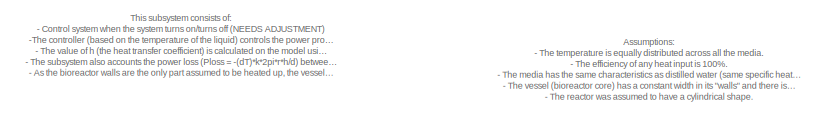
[diagram: root canvas - part 1/3, top left region]
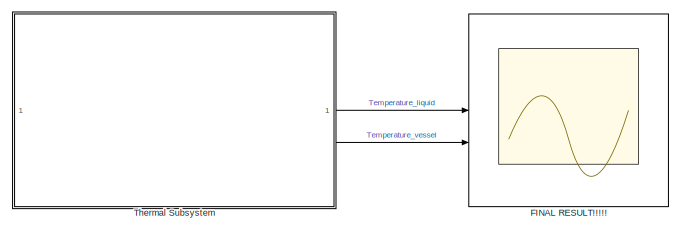
[diagram: root canvas - part 2/3, middle left region]
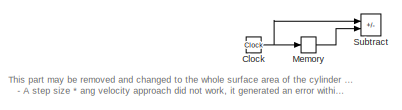
[diagram: root canvas - part 3/3, bottom right region]
MODEL slx_b20907751bbe
KIND model
CONFIG AbsTol = auto
CONFIG EnableMultiTasking = off
CONFIG FixedStep = auto
CONFIG MaxStep = auto
CONFIG MinStep = auto
CONFIG RelTol = 1e-3
CONFIG SampleTimeConstraint = Unconstrained
CONFIG SolverName = VariableStepAuto
CONFIG StartTime = 0.0
CONFIG StopTime = 1000
BLOCK [Clock] Clock
BLOCK [Scope] FINAL RESULT!!!!!
  Floating = off
  NumInputPorts = 2
  ScopeSpecificationString = Simulink.scopes.TimeScopeBlockCfg('CurrentConfiguration', extmgr.ConfigurationSet(extmgr.Configuration('Core','General UI',true),extmgr.Configuration('Core','Source UI',true),extmgr.Configuration('Sources','WiredSimulink',true,'DataLoggingVariableName','ScopeData2'),extmgr.Configuration('Visuals','Time Domain',true,'SerializedDisplays',{struct('MinYLimReal','24.3628','MaxYLimReal','30.73482','YLab...<+1427ch>
BLOCK [Memory] Memory
BLOCK [Sum] Subtract
  IconShape = rectangular
  Inputs = +-
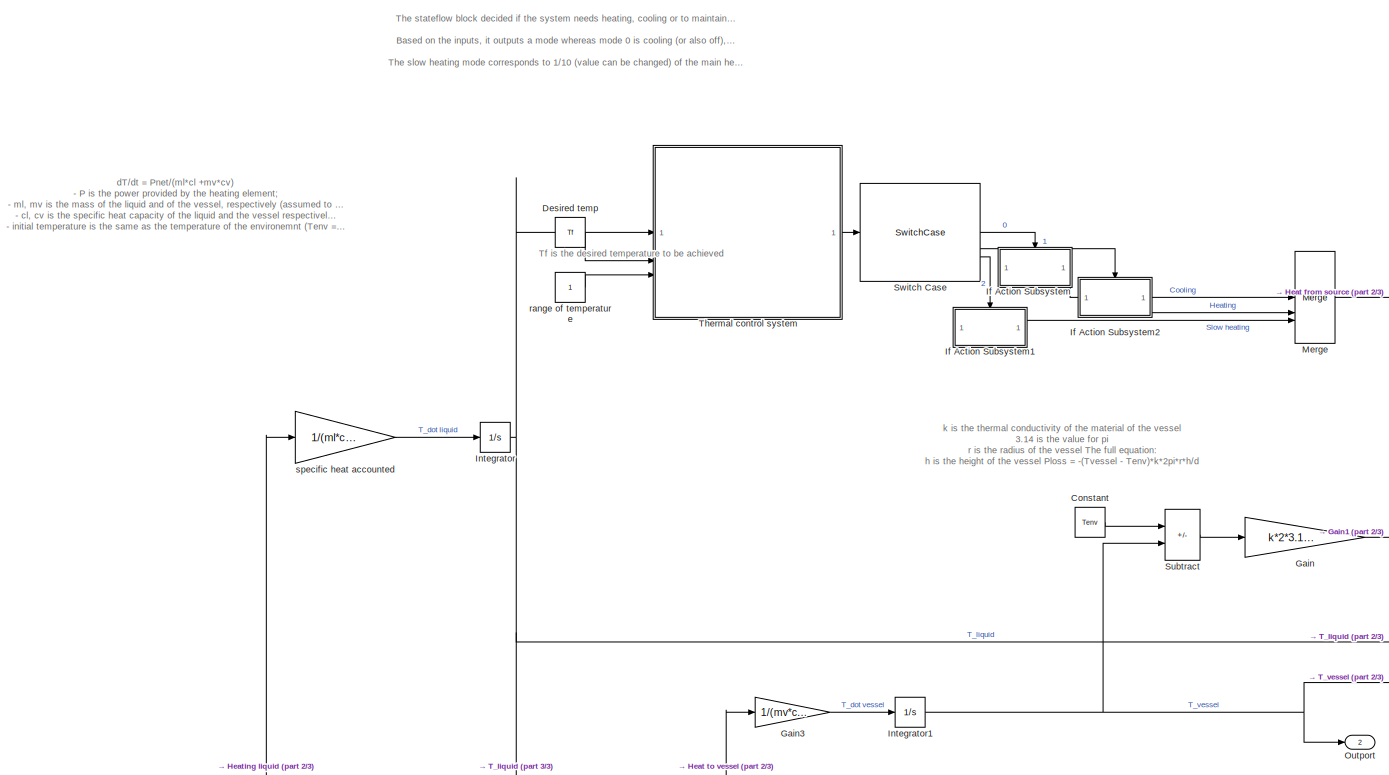
[diagram: Thermal Subsystem - part 1/3, top left region]
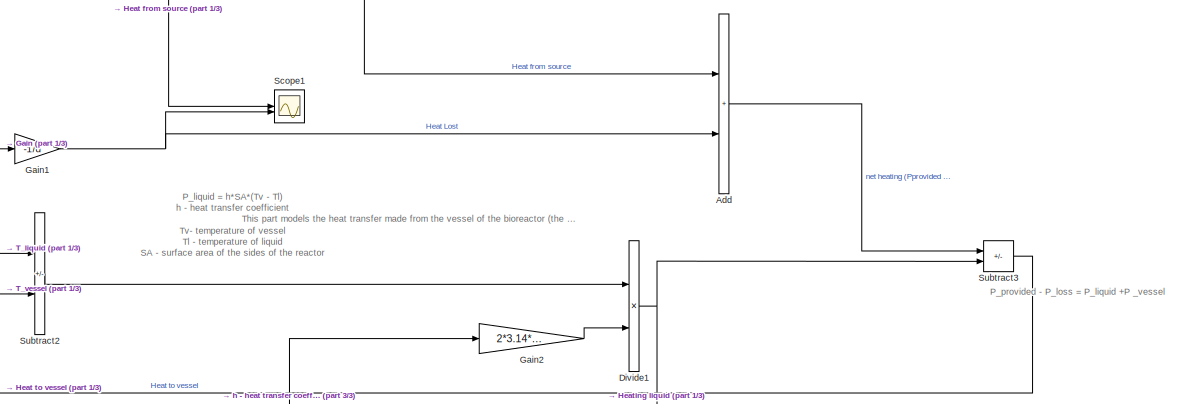
[diagram: Thermal Subsystem - part 2/3, middle right region]
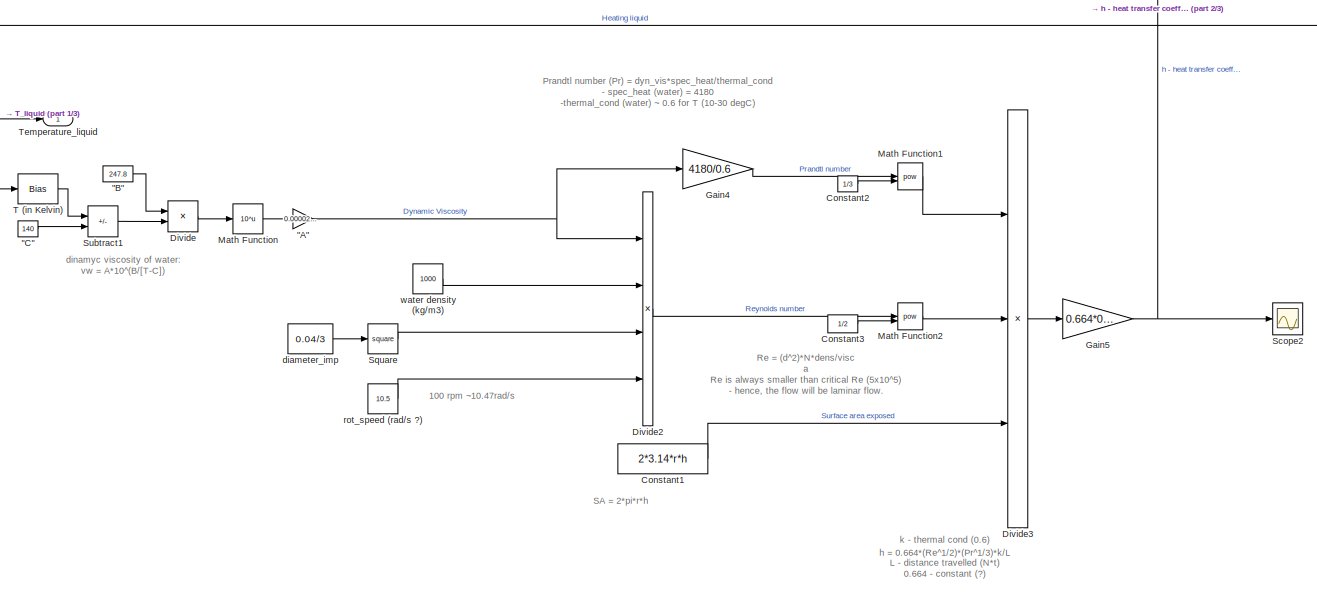
[diagram: Thermal Subsystem - part 3/3, bottom center region]
BLOCK [SubSystem] Thermal Subsystem
BLOCK [Gain] Thermal Subsystem/"A"
  Gain = 0.00002414
BLOCK [Constant] Thermal Subsystem/"B"
  Value = 247.8
BLOCK [Constant] Thermal Subsystem/"C"
  Value = 140
BLOCK [Sum] Thermal Subsystem/Add
  IconShape = rectangular
BLOCK [Constant] Thermal Subsystem/Constant
  Value = Tenv
BLOCK [Constant] Thermal Subsystem/Constant1
  Value = 2*3.14*r*h
BLOCK [Constant] Thermal Subsystem/Constant2
  Value = 1/3
BLOCK [Constant] Thermal Subsystem/Constant3
  Value = 1/2
BLOCK [Constant] Thermal Subsystem/Desired temp
  Value = Tf
BLOCK [Product] Thermal Subsystem/Divide
  Inputs = */
BLOCK [Product] Thermal Subsystem/Divide1
  Inputs = **
BLOCK [Product] Thermal Subsystem/Divide2
  Inputs = /***
BLOCK [Product] Thermal Subsystem/Divide3
  Inputs = **/
BLOCK [Gain] Thermal Subsystem/Gain
  Gain = k*2*3.14*r*h
BLOCK [Gain] Thermal Subsystem/Gain1
  Gain = -1/d
BLOCK [Gain] Thermal Subsystem/Gain2
  Gain = 2*3.14*r*h
BLOCK [Gain] Thermal Subsystem/Gain3
  Gain = 1/(mv*cv)
BLOCK [Gain] Thermal Subsystem/Gain4
  Gain = 4180/0.6
BLOCK [Gain] Thermal Subsystem/Gain5
  Gain = 0.664*0.6
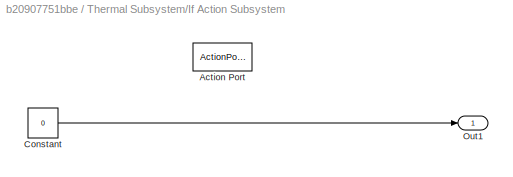
BLOCK [SubSystem] Thermal Subsystem/If Action Subsystem
  TreatAsAtomicUnit = on
BLOCK [ActionPort] Thermal Subsystem/If Action Subsystem/Action Port
  ActionPortLabel = case [ 0 ]:
BLOCK [Constant] Thermal Subsystem/If Action Subsystem/Constant
  Value = 0
BLOCK [Outport] Thermal Subsystem/If Action Subsystem/Out1
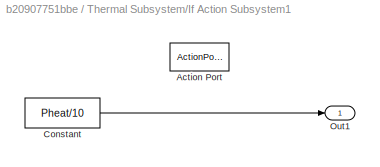
BLOCK [SubSystem] Thermal Subsystem/If Action Subsystem1
  TreatAsAtomicUnit = on
BLOCK [ActionPort] Thermal Subsystem/If Action Subsystem1/Action Port
  ActionPortLabel = case [ 2 ]:
BLOCK [Constant] Thermal Subsystem/If Action Subsystem1/Constant
  Value = Pheat/10
BLOCK [Outport] Thermal Subsystem/If Action Subsystem1/Out1
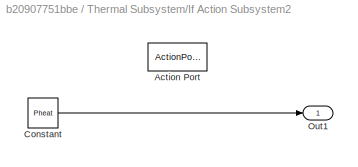
BLOCK [SubSystem] Thermal Subsystem/If Action Subsystem2
  TreatAsAtomicUnit = on
BLOCK [ActionPort] Thermal Subsystem/If Action Subsystem2/Action Port
  ActionPortLabel = case [ 1 ]:
BLOCK [Constant] Thermal Subsystem/If Action Subsystem2/Constant
  Value = Pheat
BLOCK [Outport] Thermal Subsystem/If Action Subsystem2/Out1
BLOCK [Integrator] Thermal Subsystem/Integrator
  InitialCondition = Tenv
BLOCK [Integrator] Thermal Subsystem/Integrator1
  InitialCondition = Tenv
BLOCK [Math] Thermal Subsystem/Math Function
  Operator = 10^u
BLOCK [Math] Thermal Subsystem/Math Function1
  Operator = pow
BLOCK [Math] Thermal Subsystem/Math Function2
  Operator = pow
BLOCK [Merge] Thermal Subsystem/Merge
  Inputs = 3
BLOCK [Outport] Thermal Subsystem/Outport
  Port = 2
BLOCK [Scope] Thermal Subsystem/Scope1
  Floating = off
  NumInputPorts = 2
  ScopeSpecificationString = Simulink.scopes.TimeScopeBlockCfg('CurrentConfiguration', extmgr.ConfigurationSet(extmgr.Configuration('Core','General UI',true),extmgr.Configuration('Core','Source UI',true),extmgr.Configuration('Sources','WiredSimulink',true,'DataLoggingVariableName','ScopeData2'),extmgr.Configuration('Visuals','Time Domain',true,'SerializedDisplays',{struct('MinYLimReal','-1.07609','MaxYLimReal','0.11957','YLab...<+1368ch>
BLOCK [Scope] Thermal Subsystem/Scope2
  Floating = off
  NumInputPorts = 1
  ScopeSpecificationString = Simulink.scopes.TimeScopeBlockCfg('CurrentConfiguration', extmgr.ConfigurationSet(extmgr.Configuration('Core','General UI',true),extmgr.Configuration('Core','Source UI',true),extmgr.Configuration('Sources','WiredSimulink',true,'DataLoggingVariableName','ScopeData1'),extmgr.Configuration('Visuals','Time Domain',true,'SerializedDisplays',{struct('MinYLimReal','53213.85828','MaxYLimReal','54475.01579...<+1390ch>
BLOCK [Math] Thermal Subsystem/Square
  Operator = square
BLOCK [Sum] Thermal Subsystem/Subtract
  IconShape = rectangular
  Inputs = -+
BLOCK [Sum] Thermal Subsystem/Subtract1
  IconShape = rectangular
  Inputs = +-
BLOCK [Sum] Thermal Subsystem/Subtract2
  IconShape = rectangular
  Inputs = -+
BLOCK [Sum] Thermal Subsystem/Subtract3
  IconShape = rectangular
  Inputs = +-
BLOCK [SwitchCase] Thermal Subsystem/Switch Case
  CaseConditions = {0,1,2}
  ShowDefaultCase = off
BLOCK [Bias] Thermal Subsystem/T (in Kelvin)
  Bias = 273
  SaturateOnIntegerOverflow = off
BLOCK [Outport] Thermal Subsystem/Temperature_liquid
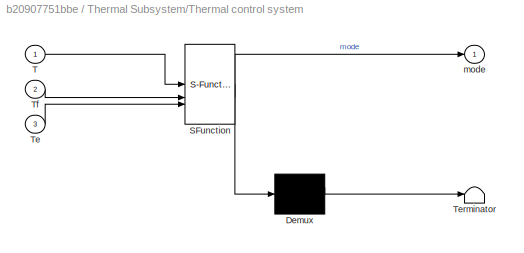
BLOCK [SubSystem] Thermal Subsystem/Thermal control system
  ErrorFcn = Stateflow.Translate.translate
  PermitHierarchicalResolution = ExplicitOnly
  SFBlockType = Chart
  TreatAsAtomicUnit = on
BLOCK [Demux] Thermal Subsystem/Thermal control system/ Demux 
  Outputs = 1
BLOCK [S-Function] Thermal Subsystem/Thermal control system/ SFunction 
  EnableBusSupport = on
  FunctionName = sf_sfun
  PortCounts = [3 2]
  SFcnIsStateOwnerBlock = off
  SFunctionDeploymentMode = off
  Tag = Stateflow S-Function 1
BLOCK [Terminator] Thermal Subsystem/Thermal control system/ Terminator 
BLOCK [Inport] Thermal Subsystem/Thermal control system/T
BLOCK [Inport] Thermal Subsystem/Thermal control system/Te
  Port = 3
BLOCK [Inport] Thermal Subsystem/Thermal control system/Tf
  Port = 2
BLOCK [Outport] Thermal Subsystem/Thermal control system/mode
BLOCK [Constant] Thermal Subsystem/diameter_imp
  Value = 0.04/3
BLOCK [Constant] Thermal Subsystem/range of temperature
BLOCK [Constant] Thermal Subsystem/rot_speed (rad//s ?)
  Value = 10.5
BLOCK [Gain] Thermal Subsystem/specific heat accounted
  Gain = 1/(ml*cl)
BLOCK [Constant] Thermal Subsystem/water density (kg//m3) 
  Value = 1000
ANNOTATION (root): This part may be removed and changed to the whole surface area of the cylinder rather than dependent on the step-size. --> could introduce uncertainties based on step-size. - A step size * ang velocity approach did not work, it generated an error within the first integrator. Therefore, the whole surface area will be considered to be the area where the heat transfer happens.
ANNOTATION (root): This subsystem consists of: - Control system when the system turns on/turns off (NEEDS ADJUSTMENT) -The controller (based on the temperature of the liquid) controls the power provided to the vessel (P_provided). The vessel is assumed to be the only part heated up. - The value of h (the heat transfer coefficient) is calculated on the model using a series of inputs that will be controlled later on d...<+858ch>
ANNOTATION (root): Assumptions: - The temperature is equally distributed across all the media. - The efficiency of any heat input is 100%. - The media has the same characteristics as distilled water (same specific heat capacity and density for example). - The vessel (bioreactor core) has a constant width in its "walls" and there is no heat transfer in the top and bottom of the bioreactor. - The reactor was assumed t...<+528ch>
ANNOTATION Thermal Subsystem: 100 rpm ~10.47rad/s
ANNOTATION Thermal Subsystem: dT/dt = Pnet/(ml*cl +mv*cv) - P is the power provided by the heating element; - ml, mv is the mass of the liquid and of the vessel, respectively (assumed to be 0.25kg and 2kg); - cl, cv is the specific heat capacity of the liquid and the vessel respectively (cl = cwater = 4180 J/kg*K and cv = cglass = 840 J/kg*K); - initial temperature is the same as the temperature of the environemnt (Tenv = 25 d...<+4ch>
ANNOTATION Thermal Subsystem: Prandtl number (Pr) = dyn_vis*spec_heat/thermal_cond - spec_heat (water) = 4180 -thermal_cond (water) ~ 0.6 for T (10-30 degC)
ANNOTATION Thermal Subsystem: Re = (d^2)*N*dens/visc a Re is always smaller than critical Re (5x10^5) - hence, the flow will be laminar flow.
ANNOTATION Thermal Subsystem: k is the thermal conductivity of the material of the vessel 3.14 is the value for pi r is the radius of the vessel The full equation: h is the height of the vessel Ploss = -(Tvessel - Tenv)*k*2pi*r*h/d
ANNOTATION Thermal Subsystem: P_liquid = h*SA*(Tv - Tl) h - heat transfer coefficient Tv- temperature of vessel Tl - temperature of liquid SA - surface area of the sides of the reactor
ANNOTATION Thermal Subsystem: SA = 2*pi*r*h
ANNOTATION Thermal Subsystem: P_provided - P_loss = P_liquid +P _vessel
ANNOTATION Thermal Subsystem: This part models the heat transfer made from the vessel of the bioreactor (the part that is heated) to the liquid in itself.
ANNOTATION Thermal Subsystem: h = 0.664*(Re^1/2)*(Pr^1/3)*k/L k - thermal cond (0.6) L - distance travelled (N*t) 0.664 - constant (?)
ANNOTATION Thermal Subsystem: dinamyc viscosity of water: vw = A*10^(B/[T-C])
ANNOTATION Thermal Subsystem: Tf is the desired temperature to be achieved
ANNOTATION Thermal Subsystem: The stateflow block decided if the system needs heating, cooling or to maintain the temperature based on the temperature (T), the desired temperature (Tf) and a range where the temperature can be maintained (+/- Terror). Based on the inputs, it outputs a mode whereas mode 0 is cooling (or also off), mode 1 is heating and mode 2 is maintaining the temperature. The slow heating mode corresponds to 1...<+52ch>
NET Clock:1 -> Memory:1, Subtract:1
LINE Memory:1 -> Subtract:2
NET Thermal Subsystem/"A":1 -> Thermal Subsystem/Divide2:1, Thermal Subsystem/Gain4:1
LINE Thermal Subsystem/"B":1 -> Thermal Subsystem/Divide:1
LINE Thermal Subsystem/"C":1 -> Thermal Subsystem/Subtract1:2
LINE Thermal Subsystem/Add:1 -> Thermal Subsystem/Subtract3:1
LINE Thermal Subsystem/Constant1:1 -> Thermal Subsystem/Divide3:3
LINE Thermal Subsystem/Constant2:1 -> Thermal Subsystem/Math Function1:2
LINE Thermal Subsystem/Constant3:1 -> Thermal Subsystem/Math Function2:2
LINE Thermal Subsystem/Constant:1 -> Thermal Subsystem/Subtract:1
LINE Thermal Subsystem/Desired temp:1 -> Thermal Subsystem/Thermal control system:2
NET Thermal Subsystem/Divide1:1 -> Thermal Subsystem/Subtract3:2, Thermal Subsystem/specific heat accounted:1
LINE Thermal Subsystem/Divide2:1 -> Thermal Subsystem/Math Function2:1
LINE Thermal Subsystem/Divide3:1 -> Thermal Subsystem/Gain5:1
LINE Thermal Subsystem/Divide:1 -> Thermal Subsystem/Math Function:1
NET Thermal Subsystem/Gain1:1 -> Thermal Subsystem/Add:2, Thermal Subsystem/Scope1:2
LINE Thermal Subsystem/Gain2:1 -> Thermal Subsystem/Divide1:2
LINE Thermal Subsystem/Gain3:1 -> Thermal Subsystem/Integrator1:1
LINE Thermal Subsystem/Gain4:1 -> Thermal Subsystem/Math Function1:1
NET Thermal Subsystem/Gain5:1 -> Thermal Subsystem/Gain2:1, Thermal Subsystem/Scope2:1
LINE Thermal Subsystem/Gain:1 -> Thermal Subsystem/Gain1:1
LINE Thermal Subsystem/If Action Subsystem/Constant:1 -> Thermal Subsystem/If Action Subsystem/Out1:1
LINE Thermal Subsystem/If Action Subsystem1/Constant:1 -> Thermal Subsystem/If Action Subsystem1/Out1:1
LINE Thermal Subsystem/If Action Subsystem1:1 -> Thermal Subsystem/Merge:3
LINE Thermal Subsystem/If Action Subsystem2/Constant:1 -> Thermal Subsystem/If Action Subsystem2/Out1:1
LINE Thermal Subsystem/If Action Subsystem2:1 -> Thermal Subsystem/Merge:2
LINE Thermal Subsystem/If Action Subsystem:1 -> Thermal Subsystem/Merge:1
NET Thermal Subsystem/Integrator1:1 -> Thermal Subsystem/Outport:1, Thermal Subsystem/Subtract2:2, Thermal Subsystem/Subtract:2
NET Thermal Subsystem/Integrator:1 -> Thermal Subsystem/Subtract2:1, Thermal Subsystem/T (in Kelvin):1, Thermal Subsystem/Temperature_liquid:1, Thermal Subsystem/Thermal control system:1
LINE Thermal Subsystem/Math Function1:1 -> Thermal Subsystem/Divide3:1
LINE Thermal Subsystem/Math Function2:1 -> Thermal Subsystem/Divide3:2
LINE Thermal Subsystem/Math Function:1 -> Thermal Subsystem/"A":1
NET Thermal Subsystem/Merge:1 -> Thermal Subsystem/Add:1, Thermal Subsystem/Scope1:1
LINE Thermal Subsystem/Square:1 -> Thermal Subsystem/Divide2:3
LINE Thermal Subsystem/Subtract1:1 -> Thermal Subsystem/Divide:2
LINE Thermal Subsystem/Subtract2:1 -> Thermal Subsystem/Divide1:1
LINE Thermal Subsystem/Subtract3:1 -> Thermal Subsystem/Gain3:1
LINE Thermal Subsystem/Subtract:1 -> Thermal Subsystem/Gain:1
LINE Thermal Subsystem/Switch Case:1 -> Thermal Subsystem/If Action Subsystem:ifaction
LINE Thermal Subsystem/Switch Case:2 -> Thermal Subsystem/If Action Subsystem2:ifaction
LINE Thermal Subsystem/Switch Case:3 -> Thermal Subsystem/If Action Subsystem1:ifaction
LINE Thermal Subsystem/T (in Kelvin):1 -> Thermal Subsystem/Subtract1:1
LINE Thermal Subsystem/Thermal control system:1 -> Thermal Subsystem/Switch Case:1
LINE Thermal Subsystem/diameter_imp:1 -> Thermal Subsystem/Square:1
LINE Thermal Subsystem/range of temperature:1 -> Thermal Subsystem/Thermal control system:3
LINE Thermal Subsystem/rot_speed (rad//s ?):1 -> Thermal Subsystem/Divide2:4
LINE Thermal Subsystem/specific heat accounted:1 -> Thermal Subsystem/Integrator:1
LINE Thermal Subsystem/water density (kg//m3) :1 -> Thermal Subsystem/Divide2:2
LINE Thermal Subsystem:1 -> FINAL RESULT!!!!!:1
LINE Thermal Subsystem:2 -> FINAL RESULT!!!!!:2
note: NET lines group one-source signal fan-out (src -> all destinations, sorted); 1:1 wires keep LINE
CHART Thermal Subsystem/Thermal control system states=4 transitions=7
  STATE_LABEL 'Heating\nentry:\nmode = 1;'
  STATE_LABEL 'Cooling\nentry:\nmode = 0;\n'
  STATE_LABEL 'Slow_Heating\nentry:\nmode = 2;'
  STATE_LABEL 'This part of the transition between cooling and slow heating can be observed to be changed  (to save power, the slow heating part can be disabled after it reaches a certain temperature)'
CHART  states=0 transitions=0
